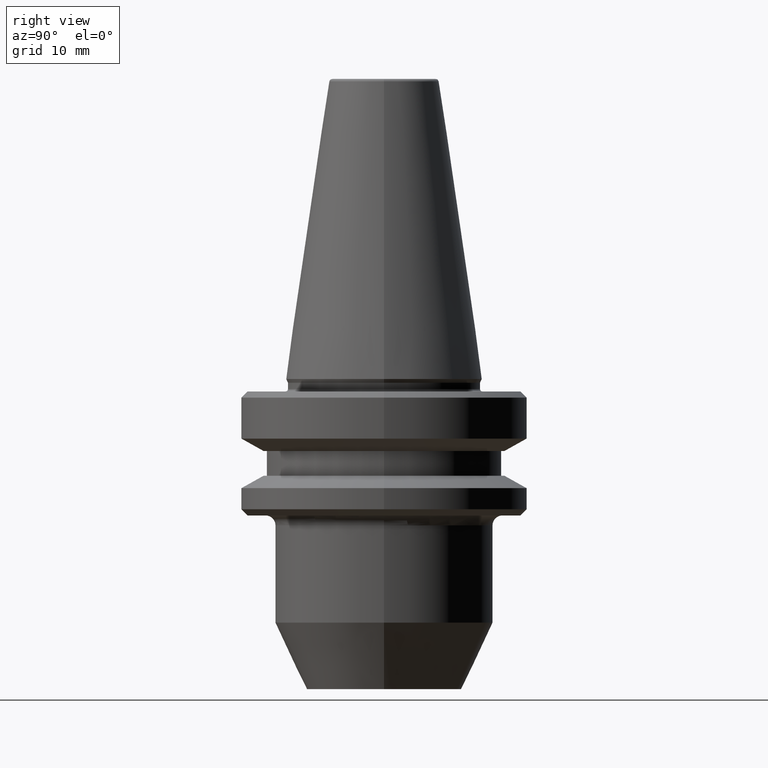
[diagram: clean part render]
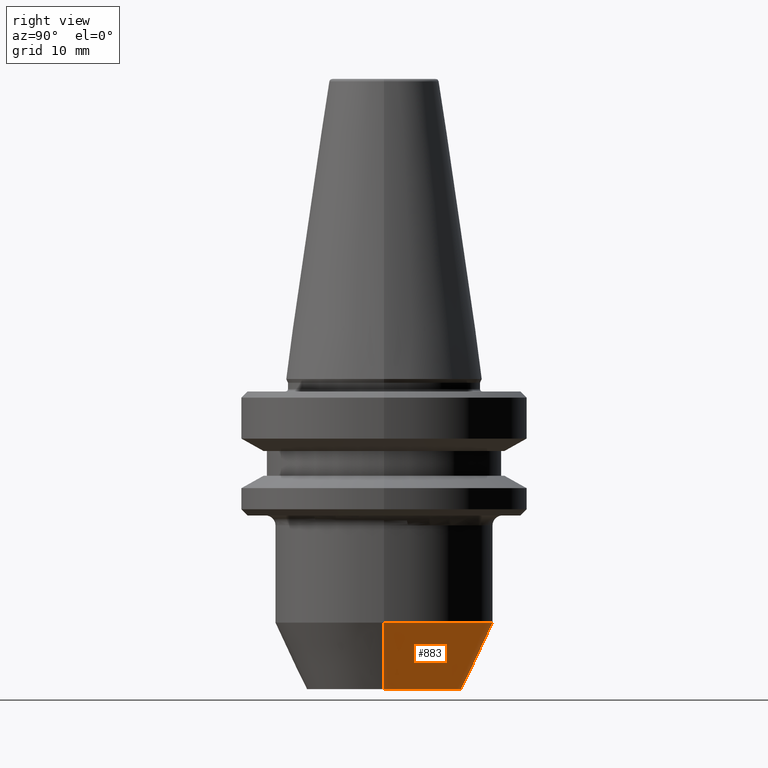
[diagram: same view with one face highlighted and labeled with its STEP entity id]
A machine part, right view. The second image highlights one B-rep face of the part: STEP entity #883.
In plain terms, the highlighted conical surface has half-angle 25 deg.
Its self-contained STEP definition (entity closure, byte-faithful):
#32 = VERTEX_POINT ( 'NONE', #415 ) ;
#44 = DIRECTION ( 'NONE',  ( -0.4226182617407099300, 5.175581015019787600E-017, 0.9063077870366450500 ) ) ;
#69 = DIRECTION ( 'NONE',  ( 0.4226182617407099300, 0.0000000000000000000, 0.9063077870366450500 ) ) ;
#100 = ORIENTED_EDGE ( 'NONE', *, *, #145, .T. ) ;
#123 = CONICAL_SURFACE ( 'NONE', #131, 12.49999999999862300, 0.4363323129985939900 ) ;
#131 = AXIS2_PLACEMENT_3D ( 'NONE', #352, #785, #416 ) ;
#145 = EDGE_CURVE ( 'NONE', #276, #32, #470, .T. ) ;
#193 = LINE ( 'NONE', #417, #551 ) ;
#204 = VERTEX_POINT ( 'NONE', #816 ) ;
#220 = CARTESIAN_POINT ( 'NONE',  ( -12.49999999999862300, 1.836970198720854900E-015, -49.99999999999980800 ) ) ;
#276 = VERTEX_POINT ( 'NONE', #220 ) ;
#282 = DIRECTION ( 'NONE',  ( -0.0000000000000000000, -0.0000000000000000000, 1.000000000000000000 ) ) ;
#352 = CARTESIAN_POINT ( 'NONE',  ( 0.0000000000000000000, 0.0000000000000000000, -49.99999999999980800 ) ) ;
#372 = CIRCLE ( 'NONE', #566, 17.49999999999851500 ) ;
#415 = CARTESIAN_POINT ( 'NONE',  ( -17.49999999999851500, 2.143131898507686400E-015, -39.27746539745256600 ) ) ;
#416 = DIRECTION ( 'NONE',  ( 1.000000000000000000, 0.0000000000000000000, 0.0000000000000000000 ) ) ;
#417 = CARTESIAN_POINT ( 'NONE',  ( 12.49999999999862300, 0.0000000000000000000, -49.99999999999980800 ) ) ;
#470 = LINE ( 'NONE', #525, #650 ) ;
#525 = CARTESIAN_POINT ( 'NONE',  ( -12.49999999999862300, 1.530808498934022900E-015, -49.99999999999980800 ) ) ;
#551 = VECTOR ( 'NONE', #69, 1000.000000000000000 ) ;
#553 = ORIENTED_EDGE ( 'NONE', *, *, #909, .T. ) ;
#555 = EDGE_LOOP ( 'NONE', ( #553, #100, #987, #578 ) ) ;
#566 = AXIS2_PLACEMENT_3D ( 'NONE', #687, #603, #847 ) ;
#570 = VERTEX_POINT ( 'NONE', #779 ) ;
#578 = ORIENTED_EDGE ( 'NONE', *, *, #694, .F. ) ;
#603 = DIRECTION ( 'NONE',  ( -0.0000000000000000000, -0.0000000000000000000, 1.000000000000000000 ) ) ;
#605 = AXIS2_PLACEMENT_3D ( 'NONE', #828, #282, #918 ) ;
#650 = VECTOR ( 'NONE', #44, 1000.000000000000000 ) ;
#687 = CARTESIAN_POINT ( 'NONE',  ( 0.0000000000000000000, 0.0000000000000000000, -39.27746539745256600 ) ) ;
#694 = EDGE_CURVE ( 'NONE', #204, #570, #193, .T. ) ;
#710 = CIRCLE ( 'NONE', #605, 12.49999999999862300 ) ;
#730 = FACE_OUTER_BOUND ( 'NONE', #555, .T. ) ;
#779 = CARTESIAN_POINT ( 'NONE',  ( 17.49999999999851500, 0.0000000000000000000, -39.27746539745256600 ) ) ;
#785 = DIRECTION ( 'NONE',  ( -0.0000000000000000000, -0.0000000000000000000, 1.000000000000000000 ) ) ;
#816 = CARTESIAN_POINT ( 'NONE',  ( 12.49999999999862300, 0.0000000000000000000, -49.99999999999980800 ) ) ;
#828 = CARTESIAN_POINT ( 'NONE',  ( 0.0000000000000000000, 0.0000000000000000000, -49.99999999999980800 ) ) ;
#847 = DIRECTION ( 'NONE',  ( 1.000000000000000000, 0.0000000000000000000, 0.0000000000000000000 ) ) ;
#865 = EDGE_CURVE ( 'NONE', #570, #32, #372, .T. ) ;
#883 = ADVANCED_FACE ( 'NONE', ( #730 ), #123, .T. ) ;
#909 = EDGE_CURVE ( 'NONE', #204, #276, #710, .T. ) ;
#918 = DIRECTION ( 'NONE',  ( 1.000000000000000000, 0.0000000000000000000, 0.0000000000000000000 ) ) ;
#987 = ORIENTED_EDGE ( 'NONE', *, *, #865, .F. ) ;